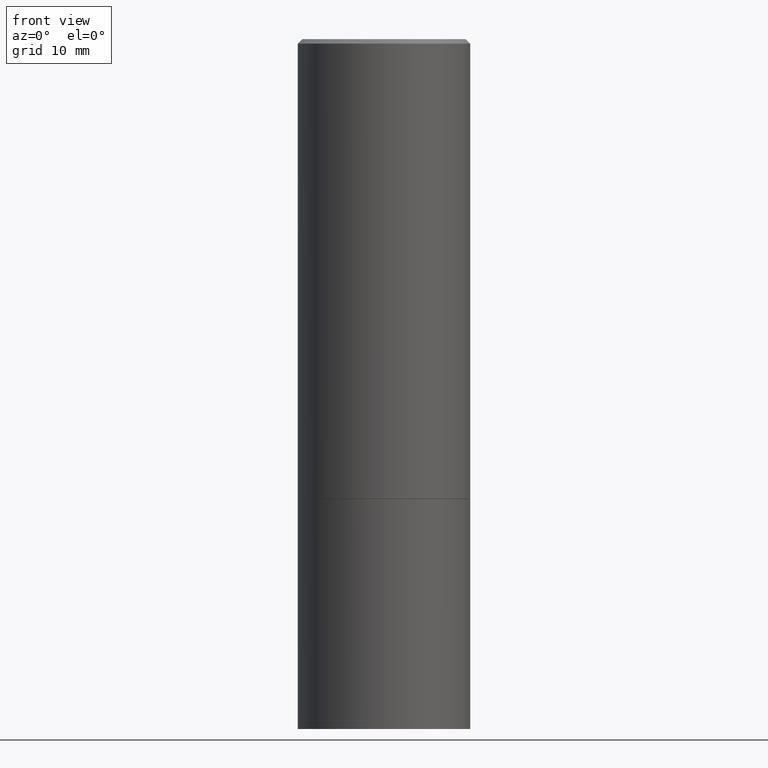
[diagram: clean part render]
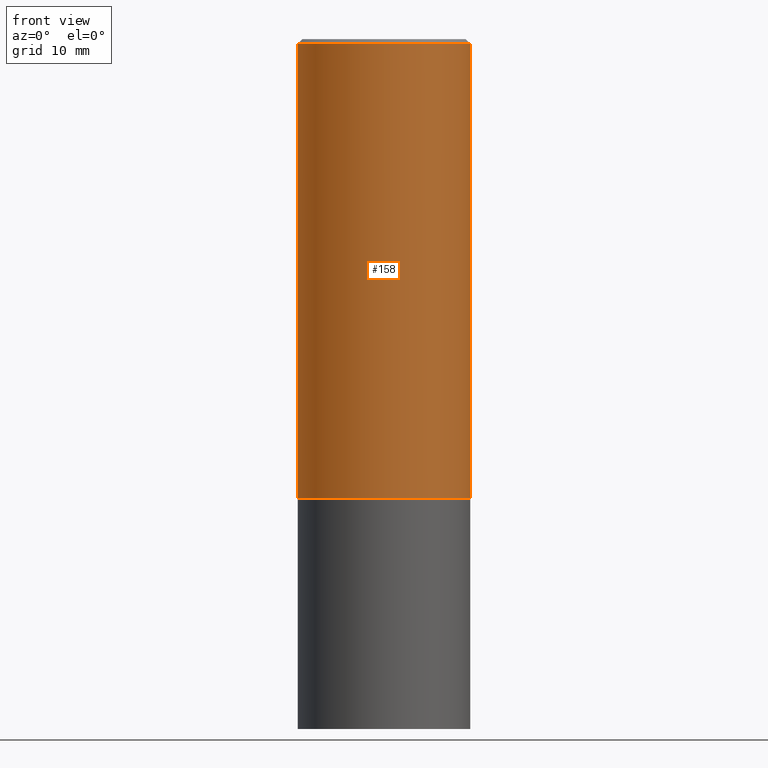
[diagram: same view with one face highlighted and labeled with its STEP entity id]
A machine part, front view. The second image highlights one B-rep face of the part: STEP entity #158.
In plain terms, the highlighted cylindrical surface (partial cylindrical patch) has radius 9.525 mm, axis along (-0, 0, 1).
Its self-contained STEP definition (entity closure, byte-faithful):
#3 = CARTESIAN_POINT ( 'NONE',  ( -0.3749999999999999445, -8.601151524617780590E-16, -1.999000000000000110 ) ) ;
#4 = CIRCLE ( 'NONE', #238, 0.3749999999999996669 ) ;
#15 = AXIS2_PLACEMENT_3D ( 'NONE', #159, #262, #287 ) ;
#17 = CYLINDRICAL_SURFACE ( 'NONE', #15, 0.3749999999999998335 ) ;
#28 = CARTESIAN_POINT ( 'NONE',  ( 0.3749999999999996669, -2.642516375941185662E-15, -0.02000000000000007327 ) ) ;
#51 = VERTEX_POINT ( 'NONE', #312 ) ;
#52 = CARTESIAN_POINT ( 'NONE',  ( 4.888492143564088712E-29, -6.979471196347448158E-15, -1.999000000000000110 ) ) ;
#72 = CARTESIAN_POINT ( 'NONE',  ( 4.890937612370290675E-31, -6.982962677686316261E-17, -0.02000000000000007327 ) ) ;
#83 = ORIENTED_EDGE ( 'NONE', *, *, #264, .T. ) ;
#88 = VERTEX_POINT ( 'NONE', #3 ) ;
#93 = FACE_OUTER_BOUND ( 'NONE', #301, .T. ) ;
#144 = DIRECTION ( 'NONE',  ( 1.000000000000000000, -6.982962677686264344E-15, 0.000000000000000000 ) ) ;
#155 = EDGE_CURVE ( 'NONE', #172, #306, #4, .T. ) ;
#156 = AXIS2_PLACEMENT_3D ( 'NONE', #52, #174, #144 ) ;
#158 = ADVANCED_FACE ( 'NONE', ( #93 ), #17, .T. ) ;
#159 = CARTESIAN_POINT ( 'NONE',  ( 0.000000000000000000, 0.000000000000000000, 0.000000000000000000 ) ) ;
#172 = VERTEX_POINT ( 'NONE', #324 ) ;
#174 = DIRECTION ( 'NONE',  ( -2.445468806185136597E-29, 3.491481338843145583E-15, 1.000000000000000000 ) ) ;
#195 = ORIENTED_EDGE ( 'NONE', *, *, #320, .T. ) ;
#197 = ORIENTED_EDGE ( 'NONE', *, *, #266, .F. ) ;
#205 = VECTOR ( 'NONE', #221, 39.37007874015748143 ) ;
#221 = DIRECTION ( 'NONE',  ( -2.445468806185136877E-29, 3.491481338843145188E-15, 1.000000000000000000 ) ) ;
#237 = DIRECTION ( 'NONE',  ( -2.445468806185136597E-29, 3.491481338843145583E-15, 1.000000000000000000 ) ) ;
#238 = AXIS2_PLACEMENT_3D ( 'NONE', #72, #237, #245 ) ;
#245 = DIRECTION ( 'NONE',  ( 1.000000000000000000, -6.982962677686266711E-15, 0.000000000000000000 ) ) ;
#253 = CARTESIAN_POINT ( 'NONE',  ( 0.3749999999999998335, -2.618611004132348439E-15, 1.828566290923475082E-29 ) ) ;
#262 = DIRECTION ( 'NONE',  ( -2.445468806185136597E-29, 3.491481338843145583E-15, 1.000000000000000000 ) ) ;
#263 = ORIENTED_EDGE ( 'NONE', *, *, #155, .F. ) ;
#264 = EDGE_CURVE ( 'NONE', #51, #306, #362, .T. ) ;
#266 = EDGE_CURVE ( 'NONE', #88, #172, #331, .T. ) ;
#276 = CARTESIAN_POINT ( 'NONE',  ( -0.3749999999999998335, 2.664535259100374514E-15, -1.844600658845588757E-29 ) ) ;
#286 = VECTOR ( 'NONE', #365, 39.37007874015748143 ) ;
#287 = DIRECTION ( 'NONE',  ( 1.000000000000000000, -6.982962677686265922E-15, 4.876176775795935793E-29 ) ) ;
#301 = EDGE_LOOP ( 'NONE', ( #197, #195, #83, #263 ) ) ;
#306 = VERTEX_POINT ( 'NONE', #28 ) ;
#312 = CARTESIAN_POINT ( 'NONE',  ( 0.3750000000000000555, -9.598082200479797386E-15, -1.999000000000000110 ) ) ;
#316 = CIRCLE ( 'NONE', #156, 0.3750000000000000555 ) ;
#320 = EDGE_CURVE ( 'NONE', #88, #51, #316, .T. ) ;
#324 = CARTESIAN_POINT ( 'NONE',  ( -0.3749999999999996669, 2.548781377355484352E-15, -0.02000000000000007327 ) ) ;
#331 = LINE ( 'NONE', #276, #286 ) ;
#362 = LINE ( 'NONE', #253, #205 ) ;
#365 = DIRECTION ( 'NONE',  ( -2.445468806185136877E-29, 3.491481338843145188E-15, 1.000000000000000000 ) ) ;